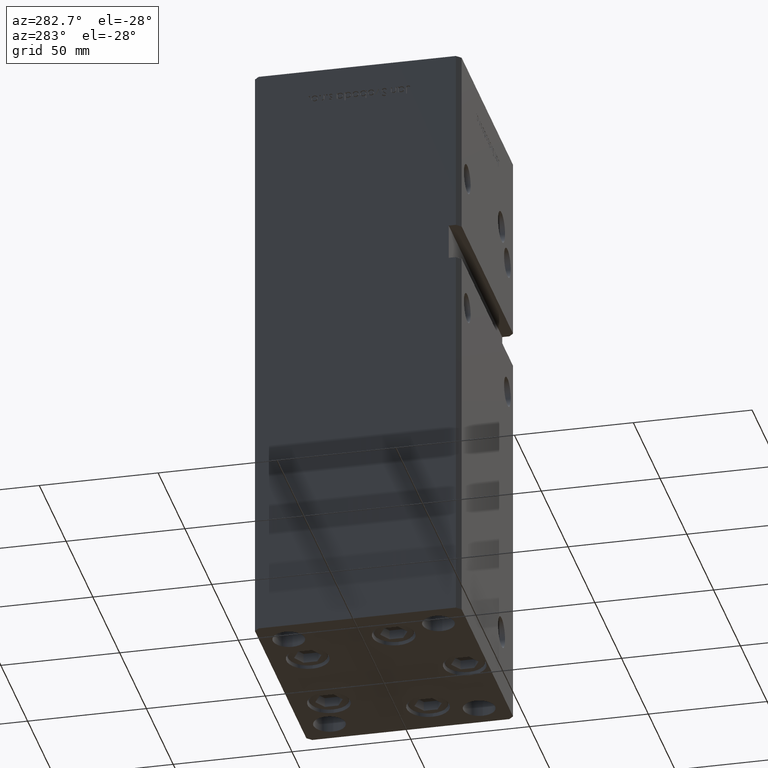
[diagram: clean part render]
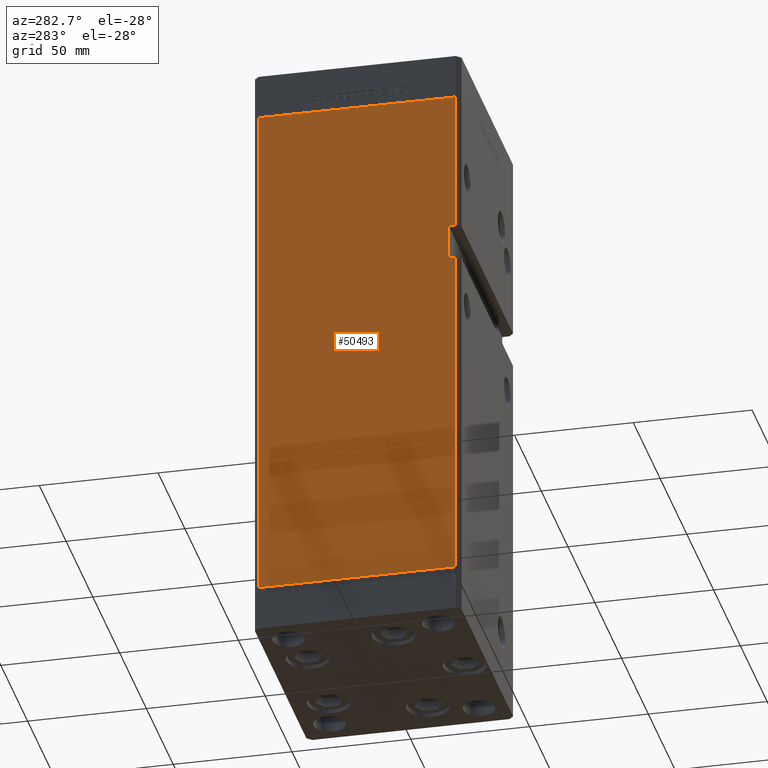
[diagram: same view with one face highlighted and labeled with its STEP entity id]
A machine part, auxiliary view. The second image highlights one B-rep face of the part: STEP entity #50493.
In plain terms, the highlighted planar face has unit normal (1, 0, 0).
Its self-contained STEP definition (entity closure, byte-faithful):
#618 = LINE ( 'NONE', #9221, #32760 ) ;
#734 = CARTESIAN_POINT ( 'NONE',  ( -49.99999999999998579, -41.49999999999999289, 0.000000000000000000 ) ) ;
#823 = CARTESIAN_POINT ( 'NONE',  ( -49.99999999999998579, -38.50000000000000000, 159.0000000000000000 ) ) ;
#3143 = DIRECTION ( 'NONE',  ( 3.344045254895050973E-16, -1.000000000000000000, 0.000000000000000000 ) ) ;
#3319 = ORIENTED_EDGE ( 'NONE', *, *, #8312, .T. ) ;
#3462 = CARTESIAN_POINT ( 'NONE',  ( -49.99999999999998579, -41.49999999999999289, 218.5000000000000000 ) ) ;
#3809 = VERTEX_POINT ( 'NONE', #734 ) ;
#4528 = VECTOR ( 'NONE', #27701, 1000.000000000000000 ) ;
#5752 = EDGE_CURVE ( 'NONE', #28058, #3809, #40075, .T. ) ;
#6648 = ORIENTED_EDGE ( 'NONE', *, *, #16298, .F. ) ;
#6725 = LINE ( 'NONE', #47318, #4528 ) ;
#7139 = FACE_OUTER_BOUND ( 'NONE', #26516, .T. ) ;
#7950 = ORIENTED_EDGE ( 'NONE', *, *, #48546, .F. ) ;
#8135 = LINE ( 'NONE', #20243, #28611 ) ;
#8312 = EDGE_CURVE ( 'NONE', #42702, #14163, #8135, .T. ) ;
#8581 = VECTOR ( 'NONE', #10251, 1000.000000000000000 ) ;
#9221 = CARTESIAN_POINT ( 'NONE',  ( -49.99999999999998579, -38.50000000000000000, 144.0000000000000284 ) ) ;
#10251 = DIRECTION ( 'NONE',  ( -0.000000000000000000, -0.000000000000000000, -1.000000000000000000 ) ) ;
#10793 = EDGE_CURVE ( 'NONE', #34395, #14438, #35954, .T. ) ;
#11437 = CARTESIAN_POINT ( 'NONE',  ( -50.00000000000001421, 41.49999999999999289, 218.5000000000000000 ) ) ;
#12515 = CARTESIAN_POINT ( 'NONE',  ( -50.00000000000001421, 41.49999999999999289, 218.5000000000000000 ) ) ;
#13036 = LINE ( 'NONE', #12515, #51613 ) ;
#14163 = VERTEX_POINT ( 'NONE', #31303 ) ;
#14438 = VERTEX_POINT ( 'NONE', #3462 ) ;
#16298 = EDGE_CURVE ( 'NONE', #21428, #23001, #618, .T. ) ;
#16710 = DIRECTION ( 'NONE',  ( -0.000000000000000000, -1.000000000000000000, -0.000000000000000000 ) ) ;
#16759 = CARTESIAN_POINT ( 'NONE',  ( -49.99999999999998579, -38.50000000000000000, 159.0000000000000000 ) ) ;
#17609 = ORIENTED_EDGE ( 'NONE', *, *, #40900, .F. ) ;
#18398 = ORIENTED_EDGE ( 'NONE', *, *, #10793, .F. ) ;
#18756 = ORIENTED_EDGE ( 'NONE', *, *, #5752, .T. ) ;
#20243 = CARTESIAN_POINT ( 'NONE',  ( -49.99999999999998579, -38.50000000000000000, 159.0000000000000000 ) ) ;
#21428 = VERTEX_POINT ( 'NONE', #37092 ) ;
#22085 = LINE ( 'NONE', #38492, #8581 ) ;
#23001 = VERTEX_POINT ( 'NONE', #37434 ) ;
#23407 = CARTESIAN_POINT ( 'NONE',  ( -50.00000000000001421, 41.49999999999999289, 0.000000000000000000 ) ) ;
#24521 = EDGE_CURVE ( 'NONE', #23001, #3809, #6725, .T. ) ;
#24530 = CARTESIAN_POINT ( 'NONE',  ( -50.00000000000001421, 41.49999999999999289, 218.5000000000000000 ) ) ;
#25360 = LINE ( 'NONE', #16759, #45240 ) ;
#25423 = CARTESIAN_POINT ( 'NONE',  ( -50.00000000000001421, 41.49999999999999289, 0.000000000000000000 ) ) ;
#26516 = EDGE_LOOP ( 'NONE', ( #31879, #6648, #17609, #3319, #7950, #18398, #48173, #18756 ) ) ;
#27701 = DIRECTION ( 'NONE',  ( -0.000000000000000000, -0.000000000000000000, -1.000000000000000000 ) ) ;
#28058 = VERTEX_POINT ( 'NONE', #25423 ) ;
#28117 = DIRECTION ( 'NONE',  ( 1.000000000000000000, 3.344045254895050480E-16, -0.000000000000000000 ) ) ;
#28424 = CARTESIAN_POINT ( 'NONE',  ( -50.00000000000001421, 41.49999999999999289, 218.5000000000000000 ) ) ;
#28611 = VECTOR ( 'NONE', #16710, 1000.000000000000000 ) ;
#29129 = DIRECTION ( 'NONE',  ( 0.000000000000000000, 0.000000000000000000, -1.000000000000000000 ) ) ;
#31303 = CARTESIAN_POINT ( 'NONE',  ( -49.99999999999998579, -41.49999999999999289, 159.0000000000000000 ) ) ;
#31602 = PLANE ( 'NONE',  #50700 ) ;
#31879 = ORIENTED_EDGE ( 'NONE', *, *, #24521, .F. ) ;
#32760 = VECTOR ( 'NONE', #49289, 1000.000000000000000 ) ;
#34395 = VERTEX_POINT ( 'NONE', #24530 ) ;
#35954 = LINE ( 'NONE', #28424, #37265 ) ;
#37092 = CARTESIAN_POINT ( 'NONE',  ( -49.99999999999998579, -38.50000000000000000, 144.0000000000000284 ) ) ;
#37117 = VECTOR ( 'NONE', #52421, 1000.000000000000000 ) ;
#37265 = VECTOR ( 'NONE', #3143, 1000.000000000000000 ) ;
#37434 = CARTESIAN_POINT ( 'NONE',  ( -49.99999999999998579, -41.49999999999999289, 144.0000000000000284 ) ) ;
#38492 = CARTESIAN_POINT ( 'NONE',  ( -49.99999999999998579, -41.49999999999999289, 218.5000000000000000 ) ) ;
#40075 = LINE ( 'NONE', #23407, #37117 ) ;
#40742 = DIRECTION ( 'NONE',  ( -3.344045254895050480E-16, 1.000000000000000000, 0.000000000000000000 ) ) ;
#40900 = EDGE_CURVE ( 'NONE', #42702, #21428, #25360, .T. ) ;
#42702 = VERTEX_POINT ( 'NONE', #823 ) ;
#45240 = VECTOR ( 'NONE', #29129, 1000.000000000000000 ) ;
#45311 = DIRECTION ( 'NONE',  ( -0.000000000000000000, -0.000000000000000000, -1.000000000000000000 ) ) ;
#47318 = CARTESIAN_POINT ( 'NONE',  ( -49.99999999999998579, -41.49999999999999289, 218.5000000000000000 ) ) ;
#48173 = ORIENTED_EDGE ( 'NONE', *, *, #52534, .T. ) ;
#48546 = EDGE_CURVE ( 'NONE', #14438, #14163, #22085, .T. ) ;
#49289 = DIRECTION ( 'NONE',  ( -0.000000000000000000, -1.000000000000000000, -0.000000000000000000 ) ) ;
#50493 = ADVANCED_FACE ( 'NONE', ( #7139 ), #31602, .F. ) ;
#50700 = AXIS2_PLACEMENT_3D ( 'NONE', #11437, #28117, #40742 ) ;
#51613 = VECTOR ( 'NONE', #45311, 1000.000000000000000 ) ;
#52421 = DIRECTION ( 'NONE',  ( 3.344045254895050973E-16, -1.000000000000000000, 0.000000000000000000 ) ) ;
#52534 = EDGE_CURVE ( 'NONE', #34395, #28058, #13036, .T. ) ;